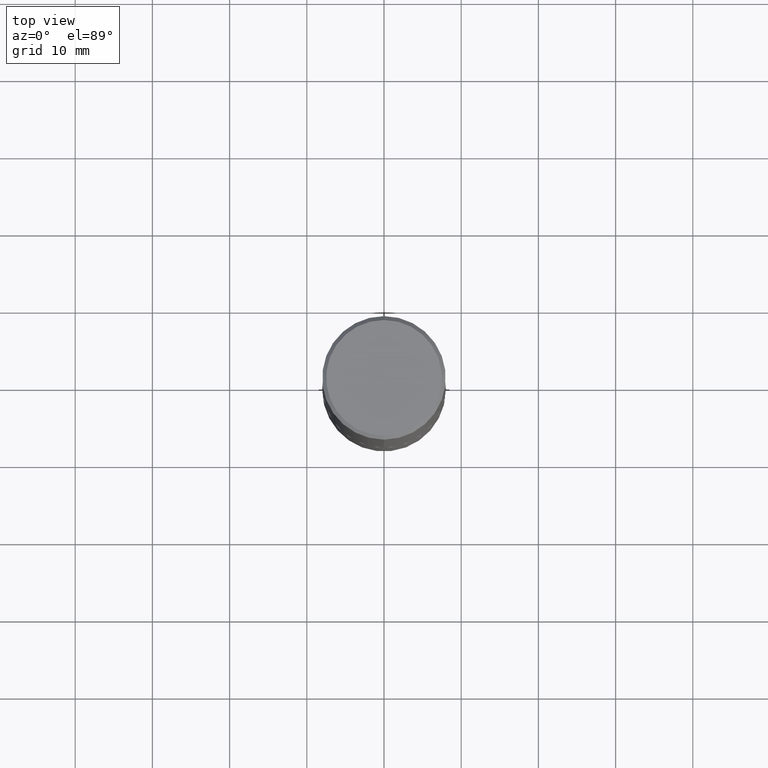
[diagram: clean part render]
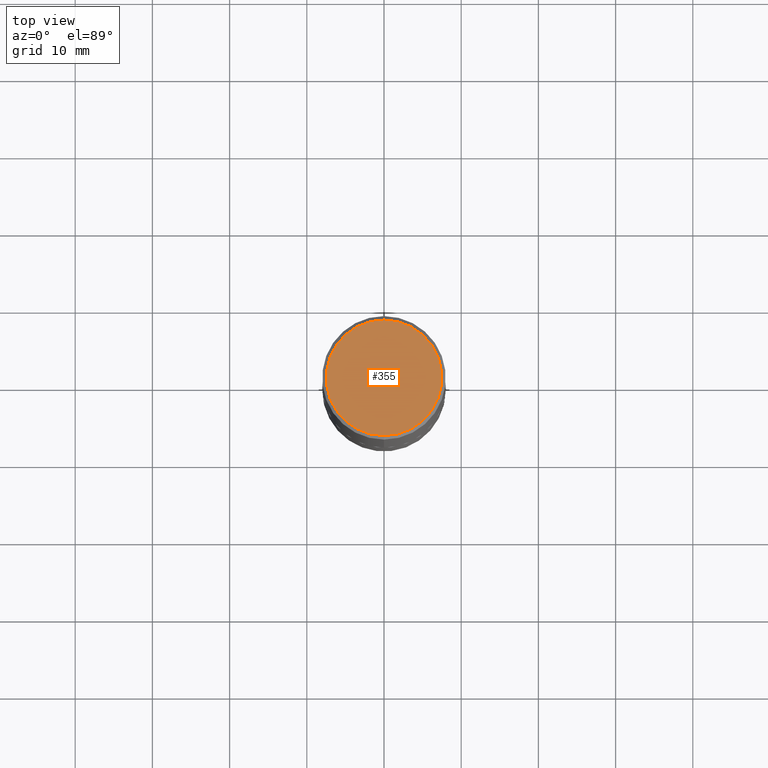
[diagram: same view with one face highlighted and labeled with its STEP entity id]
A machine part, top view. The second image highlights one B-rep face of the part: STEP entity #355.
In plain terms, the highlighted planar face has unit normal (0, -0, -1).
Its self-contained STEP definition (entity closure, byte-faithful):
#21 = AXIS2_PLACEMENT_3D ( 'NONE', #296, #172, #37 ) ;
#30 = EDGE_CURVE ( 'NONE', #307, #178, #293, .T. ) ;
#37 = DIRECTION ( 'NONE',  ( -6.982962677686265133E-15, -1.000000000000000000, 3.494944038226367750E-15 ) ) ;
#89 = CARTESIAN_POINT ( 'NONE',  ( 2.129454468560428545E-15, 0.2949500000000003785, -1.290191682787912004E-15 ) ) ;
#95 = EDGE_LOOP ( 'NONE', ( #228, #223 ) ) ;
#130 = DIRECTION ( 'NONE',  ( -2.443050816129427755E-29, 3.494944038226367750E-15, 1.000000000000000000 ) ) ;
#133 = CARTESIAN_POINT ( 'NONE',  ( 6.336246238425474629E-45, -9.064414816718317590E-31, -2.593579387130437049E-16 ) ) ;
#161 = EDGE_CURVE ( 'NONE', #178, #307, #188, .T. ) ;
#171 = AXIS2_PLACEMENT_3D ( 'NONE', #407, #239, #321 ) ;
#172 = DIRECTION ( 'NONE',  ( -2.443050816129427755E-29, 3.494944038226367750E-15, 1.000000000000000000 ) ) ;
#178 = VERTEX_POINT ( 'NONE', #258 ) ;
#188 = CIRCLE ( 'NONE', #241, 0.2949500000000003785 ) ;
#192 = FACE_OUTER_BOUND ( 'NONE', #95, .T. ) ;
#223 = ORIENTED_EDGE ( 'NONE', *, *, #161, .T. ) ;
#224 = DIRECTION ( 'NONE',  ( -6.982962677686265133E-15, -1.000000000000000000, 3.494944038226367750E-15 ) ) ;
#228 = ORIENTED_EDGE ( 'NONE', *, *, #30, .T. ) ;
#239 = DIRECTION ( 'NONE',  ( 2.443050816129427475E-29, -3.494944038226367750E-15, -1.000000000000000000 ) ) ;
#241 = AXIS2_PLACEMENT_3D ( 'NONE', #133, #130, #224 ) ;
#258 = CARTESIAN_POINT ( 'NONE',  ( -2.092108864420429609E-15, -0.2949500000000003785, 7.714758053618247912E-16 ) ) ;
#293 = CIRCLE ( 'NONE', #21, 0.2949500000000003785 ) ;
#296 = CARTESIAN_POINT ( 'NONE',  ( 6.336246238425474629E-45, -9.064414816718317590E-31, -2.593579387130437049E-16 ) ) ;
#307 = VERTEX_POINT ( 'NONE', #89 ) ;
#308 = PLANE ( 'NONE',  #171 ) ;
#321 = DIRECTION ( 'NONE',  ( 6.982962677686265922E-15, 1.000000000000000000, -3.494944038226367750E-15 ) ) ;
#355 = ADVANCED_FACE ( 'NONE', ( #192 ), #308, .F. ) ;
#407 = CARTESIAN_POINT ( 'NONE',  ( 2.059624841783566430E-15, 0.2949500000000003785, -1.160512713431390225E-15 ) ) ;